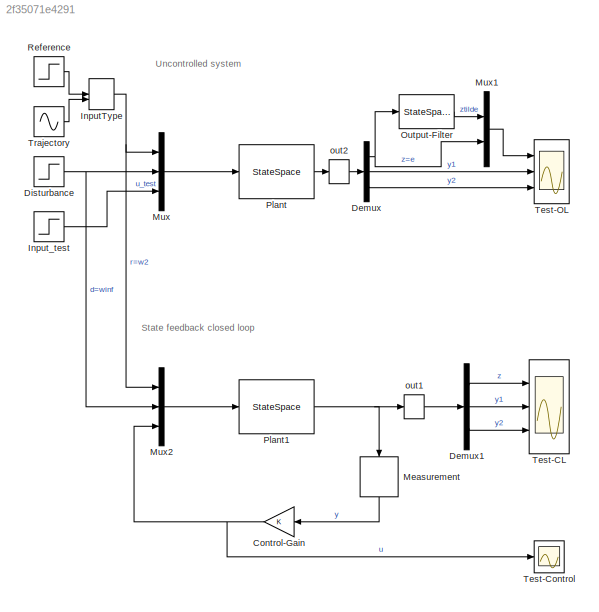
MODEL slx_2f35071e4291
KIND model
CONFIG AbsTol = auto
CONFIG FixedStep = auto
CONFIG MaxStep = auto
CONFIG MinStep = auto
CONFIG RelTol = 1e-3
CONFIG SampleTimeConstraint = Unconstrained
CONFIG Solver = VariableStepAuto
CONFIG SolverMode = Auto
CONFIG SolverName = VariableStepAuto
CONFIG StartTime = 0.0
CONFIG StopTime = 20
BLOCK [Gain] Control-Gain
  Gain = K
  Multiplication = Matrix(K*u)
  OutDataTypeStr = Inherit: Inherit via internal rule
  ParamDataTypeStr = Inherit: Inherit via internal rule
  SaturateOnIntegerOverflow = off
BLOCK [Demux] Demux
  DisplayOption = bar
  Outputs = 3
  Ports = [1, 3]
BLOCK [Demux] Demux1
  DisplayOption = bar
  Outputs = 3
  Ports = [1, 3]
BLOCK [Step] Disturbance
  After = dist
  SampleTime = 0
  Time = Tdist
BLOCK [ManualSwitch] InputType
BLOCK [Step] Input_test
  After = utest
  SampleTime = 0
  Time = Tutest
BLOCK [Selector] Measurement
  IndexOptions = Index vector (dialog)
  Indices = [3 4]
  InputPortWidth = 4
  OutputSizes = 1
  Ports = [1, 1]
BLOCK [Mux] Mux
  DisplayOption = bar
  Inputs = 3
  Ports = [3, 1]
BLOCK [Mux] Mux1
  DisplayOption = bar
  Inputs = 2
  Ports = [2, 1]
BLOCK [Mux] Mux2
  DisplayOption = bar
  Inputs = 3
  Ports = [3, 1]
BLOCK [StateSpace] Output-Filter
  A = Aof
  B = Bof
  C = Cof
  D = Dof
  Ports = [1, 1]
  X0 = 0
BLOCK [StateSpace] Plant
  A = P1.A
  B = P1.B
  C = P1.C
  D = P1.D
  Ports = [1, 1]
  X0 = x0
BLOCK [StateSpace] Plant1
  A = P1.A
  B = P1.B
  C = P1.C
  D = P1.D
  Ports = [1, 1]
  X0 = x0
BLOCK [Step] Reference
  After = ref
  SampleTime = 0
  Time = Tref
BLOCK [Scope] Test-CL
  NumInputPorts = 3
  Ports = [3]
  ScopeSpecificationString = Simulink.scopes.TimeScopeBlockCfg('CurrentConfiguration', extmgr.ConfigurationSet(extmgr.Configuration('Core','General UI',true),extmgr.Configuration('Core','Source UI',true),extmgr.Configuration('Sources','WiredSimulink',true,'DataLoggingVariableName','simulation_test','DataLogging',true,'DataLoggingSaveFormat','StructureWithTime'),extmgr.Configuration('Visuals','Time Domain',true,'SerializedDisp...<+2070ch>
BLOCK [Scope] Test-Control
  Ports = [1]
  ScopeSpecificationString = Simulink.scopes.TimeScopeBlockCfg('CurrentConfiguration', extmgr.ConfigurationSet(extmgr.Configuration('Core','General UI',true),extmgr.Configuration('Core','Source UI',true),extmgr.Configuration('Sources','WiredSimulink',true,'DataLoggingVariableName','control_test','DataLogging',true,'DataLoggingSaveFormat','StructureWithTime'),extmgr.Configuration('Visuals','Time Domain',true,'SerializedDisplay...<+1448ch>
BLOCK [Scope] Test-OL
  NumInputPorts = 3
  Ports = [3]
  ScopeSpecificationString = Simulink.scopes.TimeScopeBlockCfg('CurrentConfiguration', extmgr.ConfigurationSet(extmgr.Configuration('Core','General UI',true),extmgr.Configuration('Core','Source UI',true),extmgr.Configuration('Sources','WiredSimulink',true),extmgr.Configuration('Visuals','Time Domain',true,'SerializedDisplays',{struct('MinYLimReal','-6.13323','MaxYLimReal','4.52249','YLabelReal','','MinYLimMag','0.00000','MaxY...<+1932ch>
BLOCK [Sin] Trajectory
  Frequency = 0.5
  Ports = [0, 1]
  SampleTime = 0
BLOCK [Selector] out1
  IndexOptions = Index vector (dialog)
  Indices = [1 3 4]
  InputPortWidth = 4
  OutputSizes = 1
  Ports = [1, 1]
BLOCK [Selector] out2
  IndexOptions = Index vector (dialog)
  Indices = [1 3 4]
  InputPortWidth = 4
  OutputSizes = 1
  Ports = [1, 1]
ANNOTATION (root): State feedback closed loop
ANNOTATION (root): Uncontrolled system
NET Control-Gain:1 -> Mux2:3, Test-Control:1
LINE Demux1:1 -> Test-CL:1
LINE Demux1:2 -> Test-CL:2
LINE Demux1:3 -> Test-CL:3
NET Demux:1 -> Mux1:2, Output-Filter:1
LINE Demux:2 -> Test-OL:2
LINE Demux:3 -> Test-OL:3
NET Disturbance:1 -> Mux2:2, Mux:2
NET InputType:1 -> Mux2:1, Mux:1
LINE Input_test:1 -> Mux:3
LINE Measurement:1 -> Control-Gain:1
LINE Mux1:1 -> Test-OL:1
LINE Mux2:1 -> Plant1:1
LINE Mux:1 -> Plant:1
LINE Output-Filter:1 -> Mux1:1
NET Plant1:1 -> Measurement:1, out1:1
LINE Plant:1 -> out2:1
LINE Reference:1 -> InputType:1
LINE Trajectory:1 -> InputType:2
LINE out1:1 -> Demux1:1
LINE out2:1 -> Demux:1
note: NET lines group one-source signal fan-out (src -> all destinations, sorted); 1:1 wires keep LINE
